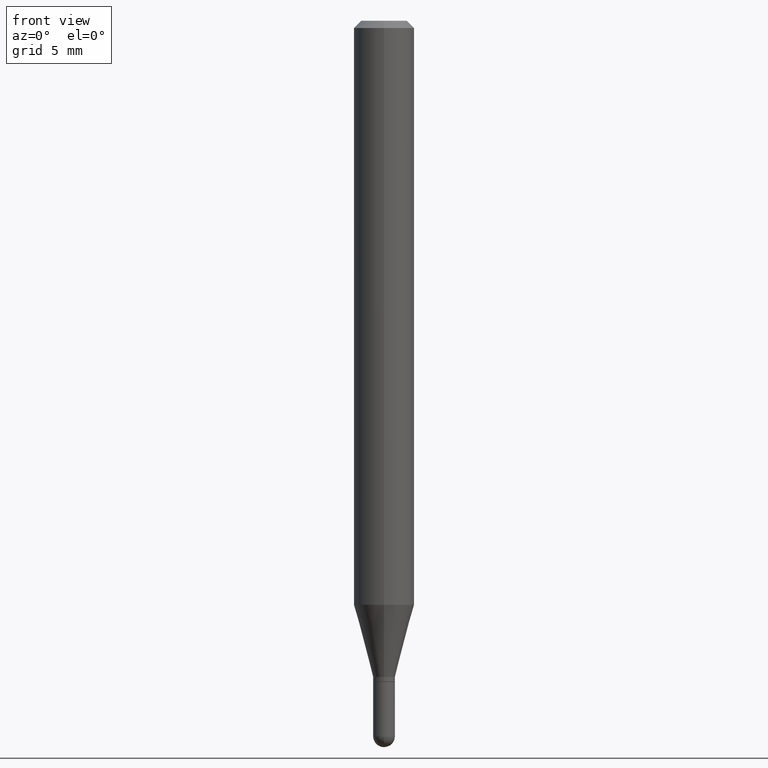
[diagram: clean part render]
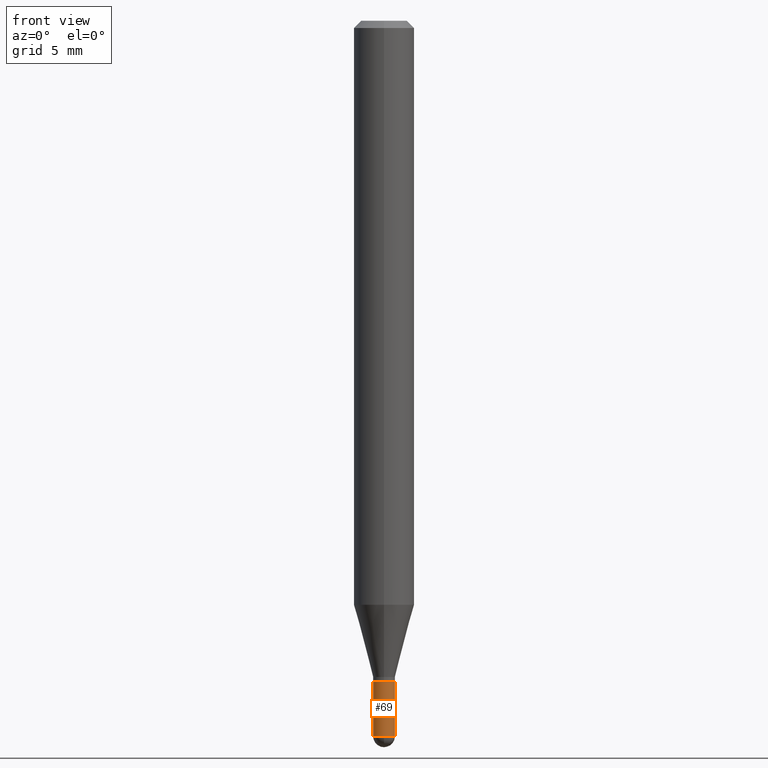
[diagram: same view with one face highlighted and labeled with its STEP entity id]
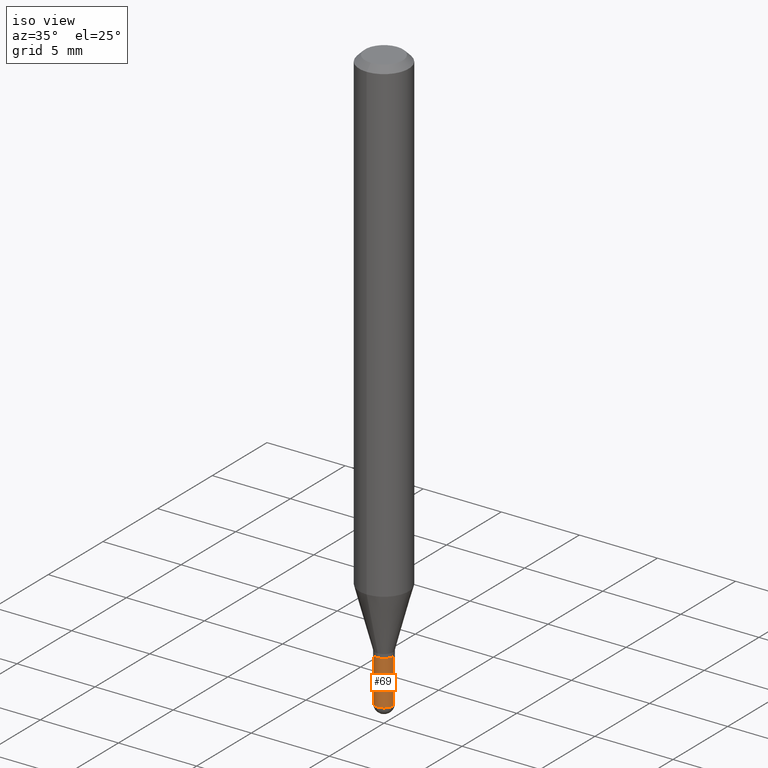
[diagram: same view with one face highlighted and labeled with its STEP entity id]
A machine part, front view. The second image highlights one B-rep face of the part: STEP entity #69.
A second angle (iso view) of the same face is appended — the face is thin or edge-on in the first view.
In plain terms, the highlighted cylindrical surface (edge-blend (fillet) strip) has radius 0.5715 mm, axis along (-0, 0, 1).
Its self-contained STEP definition (entity closure, byte-faithful):
#15 = ORIENTED_EDGE ( 'NONE', *, *, #420, .T. ) ;
#19 = EDGE_CURVE ( 'NONE', #147, #214, #221, .T. ) ;
#24 = ORIENTED_EDGE ( 'NONE', *, *, #132, .F. ) ;
#25 = AXIS2_PLACEMENT_3D ( 'NONE', #426, #149, #227 ) ;
#29 = VERTEX_POINT ( 'NONE', #438 ) ;
#38 = CARTESIAN_POINT ( 'NONE',  ( 0.000000000000000000, 0.000000000000000000, 0.000000000000000000 ) ) ;
#45 = CARTESIAN_POINT ( 'NONE',  ( 0.02249999999999999917, -1.571166602479409911E-16, 1.097139774554085483E-30 ) ) ;
#48 = AXIS2_PLACEMENT_3D ( 'NONE', #38, #237, #229 ) ;
#59 = ORIENTED_EDGE ( 'NONE', *, *, #19, .T. ) ;
#69 = ADVANCED_FACE ( 'NONE', ( #78 ), #360, .T. ) ;
#78 = FACE_OUTER_BOUND ( 'NONE', #240, .T. ) ;
#93 = VERTEX_POINT ( 'NONE', #109 ) ;
#94 = DIRECTION ( 'NONE',  ( -2.445468806185136877E-29, 3.491481338843145188E-15, 1.000000000000000000 ) ) ;
#105 = CARTESIAN_POINT ( 'NONE',  ( 3.613180161138538918E-29, -5.158663678140747361E-15, -1.477500000000000036 ) ) ;
#109 = CARTESIAN_POINT ( 'NONE',  ( -1.598721155459865688E-16, -0.02250000000000518599, -1.477500000000000036 ) ) ;
#132 = EDGE_CURVE ( 'NONE', #376, #214, #241, .T. ) ;
#137 = CIRCLE ( 'NONE', #486, 0.02249999999999999917 ) ;
#140 = CARTESIAN_POINT ( 'NONE',  ( -0.02249999999999999917, -4.802395737284797637E-15, -1.364999999999999991 ) ) ;
#147 = VERTEX_POINT ( 'NONE', #196 ) ;
#149 = DIRECTION ( 'NONE',  ( -2.445468806185136597E-29, 3.491481338843145583E-15, 1.000000000000000000 ) ) ;
#196 = CARTESIAN_POINT ( 'NONE',  ( 0.02249999999999999917, -5.119384513078760769E-15, -1.477500000000000036 ) ) ;
#202 = CARTESIAN_POINT ( 'NONE',  ( -0.02249999999999999917, 1.598721155460225359E-16, -1.106760395307353780E-30 ) ) ;
#214 = VERTEX_POINT ( 'NONE', #294 ) ;
#221 = LINE ( 'NONE', #45, #494 ) ;
#227 = DIRECTION ( 'NONE',  ( 1.000000000000000000, -6.982962677686269077E-15, 0.000000000000000000 ) ) ;
#229 = DIRECTION ( 'NONE',  ( 1.000000000000000000, -6.982962677686266711E-15, 4.876176775795935793E-29 ) ) ;
#237 = DIRECTION ( 'NONE',  ( -2.445468806185136597E-29, 3.491481338843145583E-15, 1.000000000000000000 ) ) ;
#240 = EDGE_LOOP ( 'NONE', ( #334, #15, #401, #59, #24 ) ) ;
#241 = CIRCLE ( 'NONE', #25, 0.02249999999999999917 ) ;
#265 = EDGE_CURVE ( 'NONE', #29, #376, #449, .T. ) ;
#294 = CARTESIAN_POINT ( 'NONE',  ( 0.02249999999999999917, -4.922988687768834913E-15, -1.364999999999999991 ) ) ;
#297 = CARTESIAN_POINT ( 'NONE',  ( 3.613180161138538918E-29, -5.158663678140747361E-15, -1.477500000000000036 ) ) ;
#314 = AXIS2_PLACEMENT_3D ( 'NONE', #297, #496, #419 ) ;
#319 = EDGE_CURVE ( 'NONE', #93, #147, #137, .T. ) ;
#334 = ORIENTED_EDGE ( 'NONE', *, *, #265, .F. ) ;
#340 = DIRECTION ( 'NONE',  ( -2.445468806185136597E-29, 3.491481338843145583E-15, 1.000000000000000000 ) ) ;
#360 = CYLINDRICAL_SURFACE ( 'NONE', #48, 0.02249999999999999917 ) ;
#376 = VERTEX_POINT ( 'NONE', #140 ) ;
#401 = ORIENTED_EDGE ( 'NONE', *, *, #319, .T. ) ;
#419 = DIRECTION ( 'NONE',  ( 1.000000000000000000, -6.982962677686269077E-15, 0.000000000000000000 ) ) ;
#420 = EDGE_CURVE ( 'NONE', #29, #93, #435, .T. ) ;
#426 = CARTESIAN_POINT ( 'NONE',  ( 3.338064920442711836E-29, -4.765872027520893280E-15, -1.364999999999999991 ) ) ;
#435 = CIRCLE ( 'NONE', #314, 0.02249999999999999917 ) ;
#438 = CARTESIAN_POINT ( 'NONE',  ( -0.02249999999999999917, -4.802395737284797637E-15, -1.477500000000000036 ) ) ;
#449 = LINE ( 'NONE', #202, #495 ) ;
#469 = DIRECTION ( 'NONE',  ( -2.445468806185136877E-29, 3.491481338843145188E-15, 1.000000000000000000 ) ) ;
#486 = AXIS2_PLACEMENT_3D ( 'NONE', #105, #340, #493 ) ;
#493 = DIRECTION ( 'NONE',  ( 1.000000000000000000, -6.982962677686269077E-15, 0.000000000000000000 ) ) ;
#494 = VECTOR ( 'NONE', #469, 39.37007874015748143 ) ;
#495 = VECTOR ( 'NONE', #94, 39.37007874015748143 ) ;
#496 = DIRECTION ( 'NONE',  ( -2.445468806185136597E-29, 3.491481338843145583E-15, 1.000000000000000000 ) ) ;